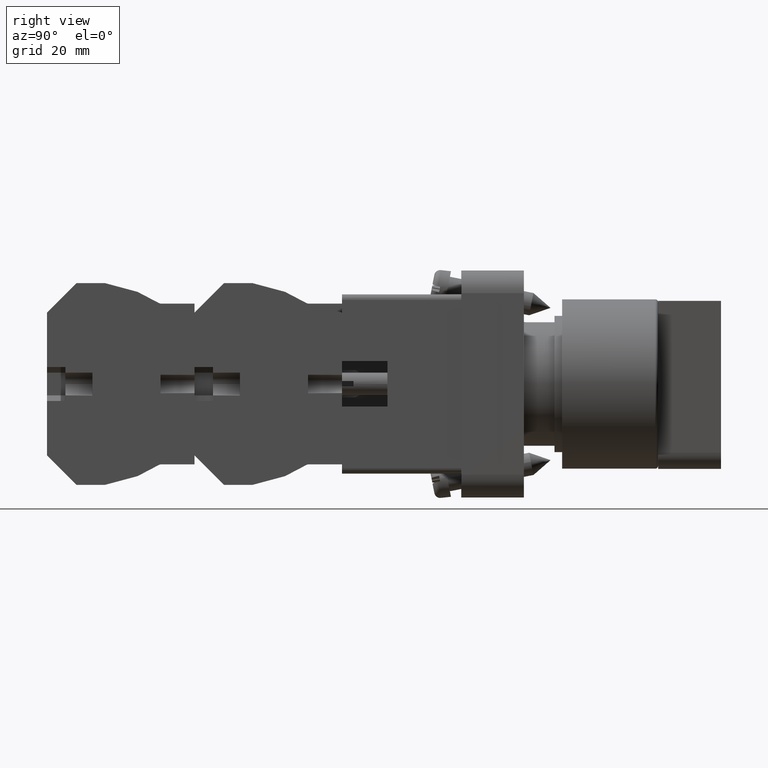
[diagram: clean part render]
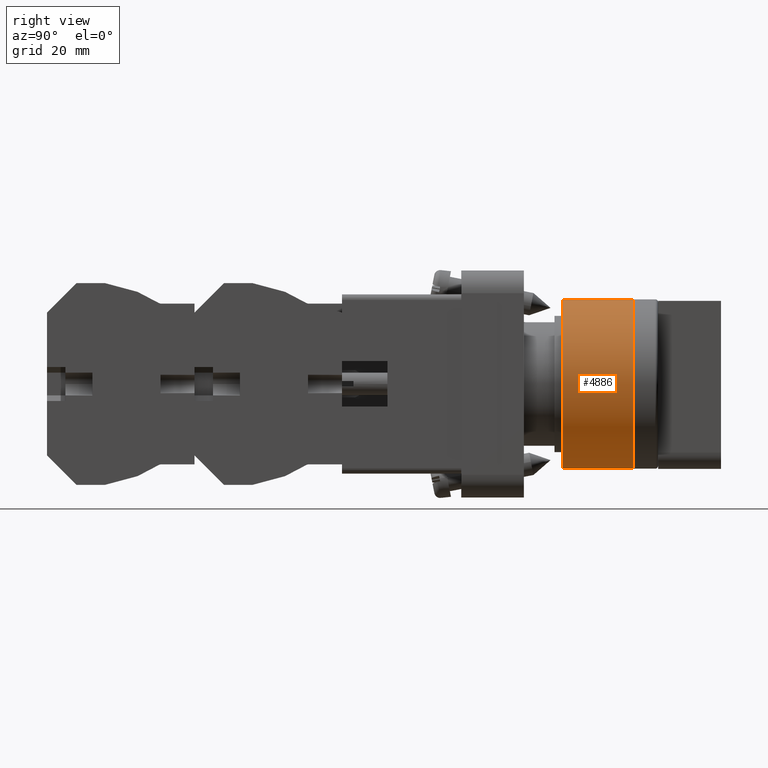
[diagram: same view with one face highlighted and labeled with its STEP entity id]
A machine part, right view. The second image highlights one B-rep face of the part: STEP entity #4886.
In plain terms, the highlighted cylindrical surface (partial cylindrical patch) has radius 14.925 mm, axis along (-0, -1, -0).
Its self-contained STEP definition (entity closure, byte-faithful):
#420 = VECTOR ( 'NONE', #10999, 39.37007874015748100 ) ;
#454 = EDGE_CURVE ( 'NONE', #11276, #12038, #5378, .T. ) ;
#596 = CARTESIAN_POINT ( 'NONE',  ( 0.0000000000000000000, 0.9409448818897640000, -0.5875984251968504600 ) ) ;
#856 = LINE ( 'NONE', #13606, #420 ) ;
#1227 = EDGE_CURVE ( 'NONE', #15399, #12038, #856, .T. ) ;
#2482 = CARTESIAN_POINT ( 'NONE',  ( 7.196005306013484500E-017, 3.673790347906964000, 0.5875984251968504600 ) ) ;
#4588 = CARTESIAN_POINT ( 'NONE',  ( 0.0000000000000000000, 3.673790347906964000, 0.0000000000000000000 ) ) ;
#4769 = CARTESIAN_POINT ( 'NONE',  ( 0.0000000000000000000, 0.9409448818897640000, 0.0000000000000000000 ) ) ;
#4886 = ADVANCED_FACE ( 'NONE', ( #13615 ), #13182, .T. ) ;
#5274 = DIRECTION ( 'NONE',  ( -0.0000000000000000000, -1.000000000000000000, -0.0000000000000000000 ) ) ;
#5378 = CIRCLE ( 'NONE', #16465, 0.5875984251968504600 ) ;
#5493 = LINE ( 'NONE', #2482, #16095 ) ;
#6185 = DIRECTION ( 'NONE',  ( 0.0000000000000000000, 0.0000000000000000000, -1.000000000000000000 ) ) ;
#6708 = EDGE_CURVE ( 'NONE', #8851, #11276, #5493, .T. ) ;
#7829 = ORIENTED_EDGE ( 'NONE', *, *, #6708, .T. ) ;
#8529 = CARTESIAN_POINT ( 'NONE',  ( 0.0000000000000000000, 0.4484251968503937300, -0.5875984251968504600 ) ) ;
#8851 = VERTEX_POINT ( 'NONE', #11617 ) ;
#10316 = CARTESIAN_POINT ( 'NONE',  ( 7.196005306013484500E-017, 0.4484251968503937300, 0.5875984251968504600 ) ) ;
#10999 = DIRECTION ( 'NONE',  ( -0.0000000000000000000, -1.000000000000000000, -0.0000000000000000000 ) ) ;
#11276 = VERTEX_POINT ( 'NONE', #10316 ) ;
#11469 = DIRECTION ( 'NONE',  ( 0.0000000000000000000, 0.0000000000000000000, -1.000000000000000000 ) ) ;
#11617 = CARTESIAN_POINT ( 'NONE',  ( 7.196005306013484500E-017, 0.9409448818897640000, 0.5875984251968504600 ) ) ;
#11805 = EDGE_CURVE ( 'NONE', #15399, #8851, #14174, .T. ) ;
#12038 = VERTEX_POINT ( 'NONE', #8529 ) ;
#12171 = EDGE_LOOP ( 'NONE', ( #14413, #7829, #13770, #15909 ) ) ;
#13182 = CYLINDRICAL_SURFACE ( 'NONE', #14535, 0.5875984251968504600 ) ;
#13606 = CARTESIAN_POINT ( 'NONE',  ( 0.0000000000000000000, 3.673790347906964000, -0.5875984251968504600 ) ) ;
#13615 = FACE_OUTER_BOUND ( 'NONE', #12171, .T. ) ;
#13770 = ORIENTED_EDGE ( 'NONE', *, *, #454, .T. ) ;
#14174 = CIRCLE ( 'NONE', #15449, 0.5875984251968504600 ) ;
#14263 = DIRECTION ( 'NONE',  ( -0.0000000000000000000, -1.000000000000000000, -0.0000000000000000000 ) ) ;
#14413 = ORIENTED_EDGE ( 'NONE', *, *, #11805, .T. ) ;
#14444 = DIRECTION ( 'NONE',  ( 0.0000000000000000000, -1.000000000000000000, 0.0000000000000000000 ) ) ;
#14535 = AXIS2_PLACEMENT_3D ( 'NONE', #4588, #14263, #11469 ) ;
#14964 = CARTESIAN_POINT ( 'NONE',  ( 0.0000000000000000000, 0.4484251968503937300, 0.0000000000000000000 ) ) ;
#15076 = DIRECTION ( 'NONE',  ( 0.0000000000000000000, 1.000000000000000000, 0.0000000000000000000 ) ) ;
#15399 = VERTEX_POINT ( 'NONE', #596 ) ;
#15449 = AXIS2_PLACEMENT_3D ( 'NONE', #4769, #14444, #6185 ) ;
#15909 = ORIENTED_EDGE ( 'NONE', *, *, #1227, .F. ) ;
#16095 = VECTOR ( 'NONE', #5274, 39.37007874015748100 ) ;
#16465 = AXIS2_PLACEMENT_3D ( 'NONE', #14964, #15076, #17997 ) ;
#17997 = DIRECTION ( 'NONE',  ( 0.0000000000000000000, 0.0000000000000000000, 1.000000000000000000 ) ) ;